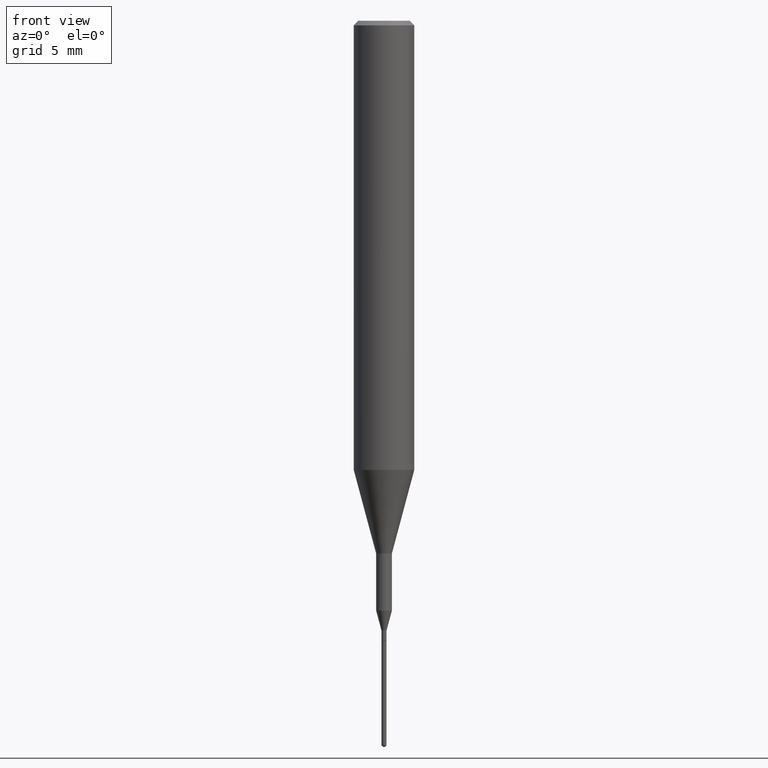
[diagram: clean part render]
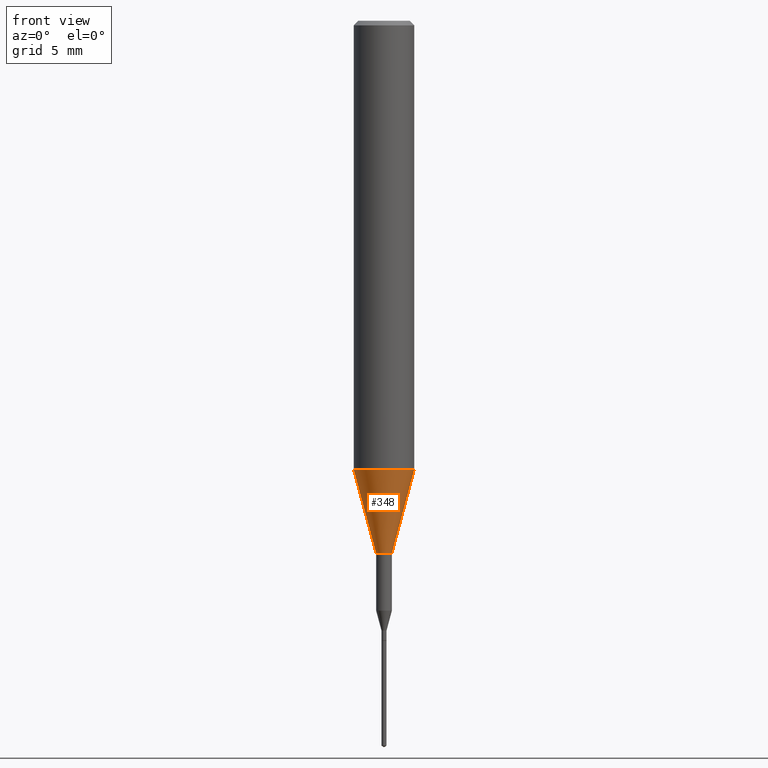
[diagram: same view with one face highlighted and labeled with its STEP entity id]
A machine part, front view. The second image highlights one B-rep face of the part: STEP entity #348.
In plain terms, the highlighted conical surface has half-angle 15 deg.
Its self-contained STEP definition (entity closure, byte-faithful):
#6 = CARTESIAN_POINT ( 'NONE',  ( 0.01624999999999999709, -3.954102616239861778E-15, -1.100000000000000089 ) ) ;
#15 = CARTESIAN_POINT ( 'NONE',  ( 2.267909797027042920E-29, -3.237974131778804114E-15, -0.9273926501499395458 ) ) ;
#21 = DIRECTION ( 'NONE',  ( 1.000000000000000000, -6.982962677686265922E-15, 0.000000000000000000 ) ) ;
#31 = CARTESIAN_POINT ( 'NONE',  ( -0.01624999999999999709, -3.931071922978147770E-15, -1.100000000000000089 ) ) ;
#37 = EDGE_CURVE ( 'NONE', #323, #99, #349, .T. ) ;
#64 = EDGE_CURVE ( 'NONE', #142, #493, #487, .T. ) ;
#71 = EDGE_CURVE ( 'NONE', #493, #99, #286, .T. ) ;
#99 = VERTEX_POINT ( 'NONE', #518 ) ;
#102 = DIRECTION ( 'NONE',  ( -2.445468806185136597E-29, 3.491481338843145583E-15, 1.000000000000000000 ) ) ;
#105 = DIRECTION ( 'NONE',  ( -2.445468806185136597E-29, 3.491481338843145583E-15, 1.000000000000000000 ) ) ;
#142 = VERTEX_POINT ( 'NONE', #31 ) ;
#154 = VECTOR ( 'NONE', #524, 39.37007874015748143 ) ;
#161 = EDGE_CURVE ( 'NONE', #142, #323, #535, .T. ) ;
#177 = ORIENTED_EDGE ( 'NONE', *, *, #64, .F. ) ;
#192 = AXIS2_PLACEMENT_3D ( 'NONE', #15, #105, #21 ) ;
#196 = DIRECTION ( 'NONE',  ( 0.2588190451025214611, 1.565188264969620982E-15, 0.9659258262890679791 ) ) ;
#211 = DIRECTION ( 'NONE',  ( 1.000000000000000000, -6.982962677686259611E-15, 0.000000000000000000 ) ) ;
#241 = DIRECTION ( 'NONE',  ( 1.000000000000000000, -6.982962677686265922E-15, 0.000000000000000000 ) ) ;
#286 = CIRCLE ( 'NONE', #192, 0.06250000000000011102 ) ;
#289 = CARTESIAN_POINT ( 'NONE',  ( 2.267909797027042920E-29, -3.237974131778804114E-15, -0.9273926501499395458 ) ) ;
#313 = CARTESIAN_POINT ( 'NONE',  ( 2.690015686803650369E-29, -3.840629472727460101E-15, -1.100000000000000089 ) ) ;
#323 = VERTEX_POINT ( 'NONE', #6 ) ;
#344 = VECTOR ( 'NONE', #196, 39.37007874015748143 ) ;
#348 = ADVANCED_FACE ( 'NONE', ( #374 ), #460, .T. ) ;
#349 = LINE ( 'NONE', #530, #344 ) ;
#374 = FACE_OUTER_BOUND ( 'NONE', #577, .T. ) ;
#390 = ORIENTED_EDGE ( 'NONE', *, *, #37, .T. ) ;
#426 = CARTESIAN_POINT ( 'NONE',  ( -0.06250000000000011102, -2.793884921928740709E-15, -0.9273926501499395458 ) ) ;
#436 = ORIENTED_EDGE ( 'NONE', *, *, #71, .F. ) ;
#458 = AXIS2_PLACEMENT_3D ( 'NONE', #313, #495, #211 ) ;
#460 = CONICAL_SURFACE ( 'NONE', #581, 0.06250000000000011102, 0.2617993877991501850 ) ;
#486 = CARTESIAN_POINT ( 'NONE',  ( -0.06250000000000011102, -2.793884921928740709E-15, -0.9273926501499395458 ) ) ;
#487 = LINE ( 'NONE', #426, #154 ) ;
#493 = VERTEX_POINT ( 'NONE', #486 ) ;
#495 = DIRECTION ( 'NONE',  ( -2.445468806185136597E-29, 3.491481338843145583E-15, 1.000000000000000000 ) ) ;
#518 = CARTESIAN_POINT ( 'NONE',  ( 0.06250000000000011102, -3.674409299134196572E-15, -0.9273926501499395458 ) ) ;
#521 = ORIENTED_EDGE ( 'NONE', *, *, #161, .T. ) ;
#524 = DIRECTION ( 'NONE',  ( -0.2588190451025214611, 5.211531920934550253E-15, 0.9659258262890679791 ) ) ;
#530 = CARTESIAN_POINT ( 'NONE',  ( 0.06250000000000011102, -3.674409299134196572E-15, -0.9273926501499395458 ) ) ;
#535 = CIRCLE ( 'NONE', #458, 0.01624999999999999709 ) ;
#577 = EDGE_LOOP ( 'NONE', ( #177, #521, #390, #436 ) ) ;
#581 = AXIS2_PLACEMENT_3D ( 'NONE', #289, #102, #241 ) ;